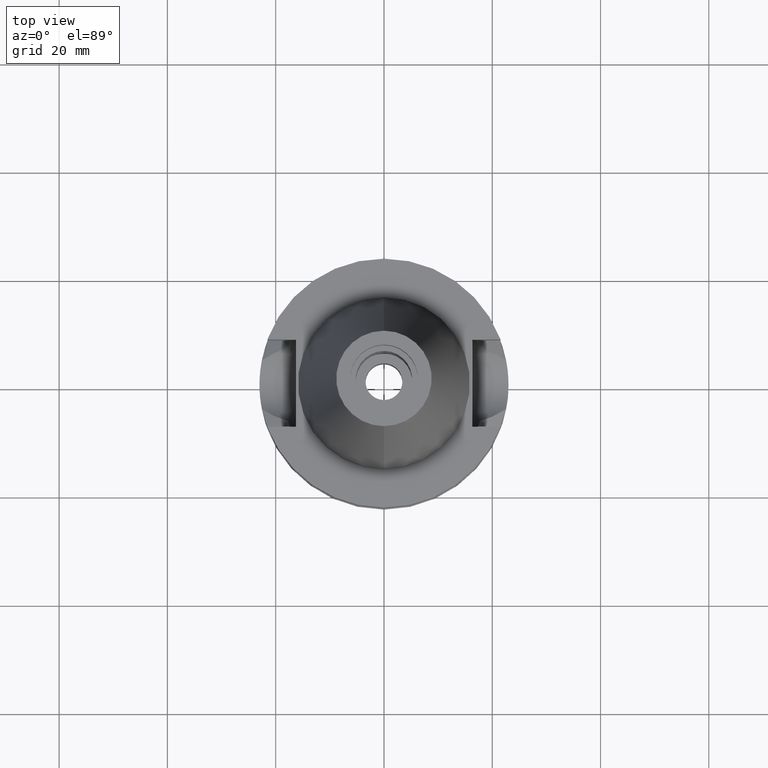
[diagram: clean part render]
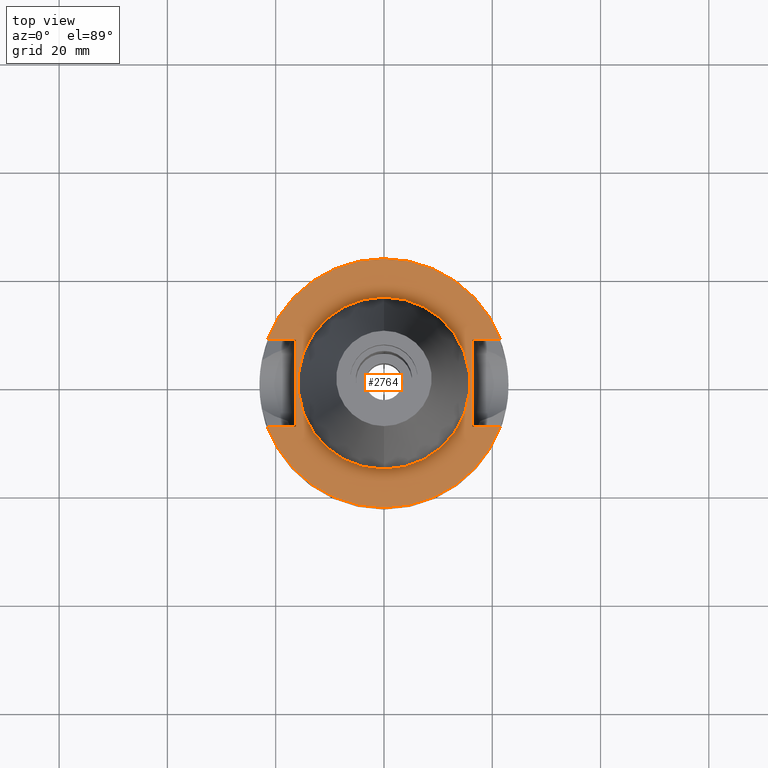
[diagram: same view with one face highlighted and labeled with its STEP entity id]
A machine part, top view. The second image highlights one B-rep face of the part: STEP entity #2764.
In plain terms, the highlighted planar face has unit normal (0, 0, -1).
Its self-contained STEP definition (entity closure, byte-faithful):
#94=DIRECTION('',(0.E0,1.E0,0.E0));
#95=VECTOR('',#94,1.61E1);
#96=CARTESIAN_POINT('',(-1.63E1,-8.05E0,-2.E0));
#97=LINE('',#96,#95);
#101=DIRECTION('',(-1.E0,9.347030801892E-14,0.E0));
#102=VECTOR('',#101,5.245243094473E0);
#103=CARTESIAN_POINT('',(-1.63E1,8.05E0,-2.E0));
#104=LINE('',#103,#102);
#108=CARTESIAN_POINT('',(0.E0,1.889874940444E-14,-2.E0));
#109=DIRECTION('',(0.E0,0.E0,-1.E0));
#110=DIRECTION('',(-9.367496997598E-1,3.5E-1,0.E0));
#111=AXIS2_PLACEMENT_3D('',#108,#109,#110);
#116=CARTESIAN_POINT('',(0.E0,1.889874940444E-14,-2.E0));
#117=DIRECTION('',(0.E0,0.E0,-1.E0));
#118=DIRECTION('',(0.E0,1.E0,0.E0));
#119=AXIS2_PLACEMENT_3D('',#116,#117,#118);
#124=DIRECTION('',(0.E0,-1.E0,0.E0));
#125=VECTOR('',#124,1.61E1);
#126=CARTESIAN_POINT('',(1.63E1,8.05E0,-2.E0));
#127=LINE('',#126,#125);
#131=DIRECTION('',(1.E0,-9.347030801892E-14,0.E0));
#132=VECTOR('',#131,5.245243094473E0);
#133=CARTESIAN_POINT('',(1.63E1,-8.05E0,-2.E0));
#134=LINE('',#133,#132);
#138=CARTESIAN_POINT('',(0.E0,1.889874940444E-14,-2.E0));
#139=DIRECTION('',(0.E0,0.E0,-1.E0));
#140=DIRECTION('',(9.367496997598E-1,-3.5E-1,0.E0));
#141=AXIS2_PLACEMENT_3D('',#138,#139,#140);
#146=CARTESIAN_POINT('',(0.E0,1.889874940444E-14,-2.E0));
#147=DIRECTION('',(0.E0,0.E0,-1.E0));
#148=DIRECTION('',(0.E0,-1.E0,0.E0));
#149=AXIS2_PLACEMENT_3D('',#146,#147,#148);
#154=CARTESIAN_POINT('',(0.E0,1.889874940444E-14,-2.E0));
#155=DIRECTION('',(0.E0,0.E0,1.E0));
#156=DIRECTION('',(0.E0,-1.E0,0.E0));
#157=AXIS2_PLACEMENT_3D('',#154,#155,#156);
#162=CARTESIAN_POINT('',(0.E0,1.889874940444E-14,-2.E0));
#163=DIRECTION('',(0.E0,0.E0,1.E0));
#164=DIRECTION('',(0.E0,1.E0,0.E0));
#165=AXIS2_PLACEMENT_3D('',#162,#163,#164);
#210=DIRECTION('',(-1.E0,-9.313164748262E-14,0.E0));
#211=VECTOR('',#210,5.245243094473E0);
#212=CARTESIAN_POINT('',(-1.63E1,-8.05E0,-2.E0));
#213=LINE('',#212,#211);
#333=DIRECTION('',(1.E0,9.380896855522E-14,0.E0));
#334=VECTOR('',#333,5.245243094473E0);
#335=CARTESIAN_POINT('',(1.63E1,8.05E0,-2.E0));
#336=LINE('',#335,#334);
#2595=CARTESIAN_POINT('',(-1.63E1,-8.05E0,-2.E0));
#2596=VERTEX_POINT('',#2595);
#2597=CARTESIAN_POINT('',(-2.154524309447E1,-8.05E0,-2.E0));
#2598=VERTEX_POINT('',#2597);
#2599=CARTESIAN_POINT('',(-1.63E1,8.05E0,-2.E0));
#2600=VERTEX_POINT('',#2599);
#2601=CARTESIAN_POINT('',(-2.154524309447E1,8.05E0,-2.E0));
#2602=VERTEX_POINT('',#2601);
#2603=CARTESIAN_POINT('',(0.E0,2.3E1,-2.E0));
#2604=CARTESIAN_POINT('',(2.154524309447E1,8.05E0,-2.E0));
#2605=VERTEX_POINT('',#2603);
#2606=VERTEX_POINT('',#2604);
#2607=CARTESIAN_POINT('',(1.63E1,8.05E0,-2.E0));
#2608=VERTEX_POINT('',#2607);
#2609=CARTESIAN_POINT('',(1.63E1,-8.05E0,-2.E0));
#2610=VERTEX_POINT('',#2609);
#2611=CARTESIAN_POINT('',(2.154524309447E1,-8.05E0,-2.E0));
#2612=VERTEX_POINT('',#2611);
#2613=CARTESIAN_POINT('',(0.E0,-2.3E1,-2.E0));
#2614=VERTEX_POINT('',#2613);
#2615=CARTESIAN_POINT('',(0.E0,-1.5875E1,-2.E0));
#2616=CARTESIAN_POINT('',(0.E0,1.5875E1,-2.E0));
#2617=VERTEX_POINT('',#2615);
#2618=VERTEX_POINT('',#2616);
#2733=CARTESIAN_POINT('',(0.E0,1.200153863164E-14,-2.E0));
#2734=DIRECTION('',(0.E0,0.E0,-1.E0));
#2735=DIRECTION('',(0.E0,-1.E0,0.E0));
#2736=AXIS2_PLACEMENT_3D('',#2733,#2734,#2735);
#2737=PLANE('',#2736);
#2739=ORIENTED_EDGE('',*,*,#2738,.T.);
#2741=ORIENTED_EDGE('',*,*,#2740,.T.);
#2743=ORIENTED_EDGE('',*,*,#2742,.T.);
#2745=ORIENTED_EDGE('',*,*,#2744,.T.);
#2747=ORIENTED_EDGE('',*,*,#2746,.F.);
#2749=ORIENTED_EDGE('',*,*,#2748,.T.);
#2751=ORIENTED_EDGE('',*,*,#2750,.T.);
#2753=ORIENTED_EDGE('',*,*,#2752,.T.);
#2755=ORIENTED_EDGE('',*,*,#2754,.T.);
#2757=ORIENTED_EDGE('',*,*,#2756,.F.);
#2758=EDGE_LOOP('',(#2739,#2741,#2743,#2745,#2747,#2749,#2751,#2753,#2755,
#2757));
#2759=FACE_OUTER_BOUND('',#2758,.F.);
#2760=ORIENTED_EDGE('',*,*,#2712,.T.);
#2761=ORIENTED_EDGE('',*,*,#2728,.T.);
#2762=EDGE_LOOP('',(#2760,#2761));
#2763=FACE_BOUND('',#2762,.F.);
#112=CIRCLE('',#111,2.3E1);
#120=CIRCLE('',#119,2.3E1);
#142=CIRCLE('',#141,2.3E1);
#150=CIRCLE('',#149,2.3E1);
#158=CIRCLE('',#157,1.5875E1);
#166=CIRCLE('',#165,1.5875E1);
#2712=EDGE_CURVE('',#2617,#2618,#158,.T.);
#2728=EDGE_CURVE('',#2618,#2617,#166,.T.);
#2738=EDGE_CURVE('',#2596,#2600,#97,.T.);
#2740=EDGE_CURVE('',#2600,#2602,#104,.T.);
#2742=EDGE_CURVE('',#2602,#2605,#112,.T.);
#2744=EDGE_CURVE('',#2605,#2606,#120,.T.);
#2746=EDGE_CURVE('',#2608,#2606,#336,.T.);
#2748=EDGE_CURVE('',#2608,#2610,#127,.T.);
#2750=EDGE_CURVE('',#2610,#2612,#134,.T.);
#2752=EDGE_CURVE('',#2612,#2614,#142,.T.);
#2754=EDGE_CURVE('',#2614,#2598,#150,.T.);
#2756=EDGE_CURVE('',#2596,#2598,#213,.T.);
#2764=ADVANCED_FACE('',(#2759,#2763),#2737,.F.);